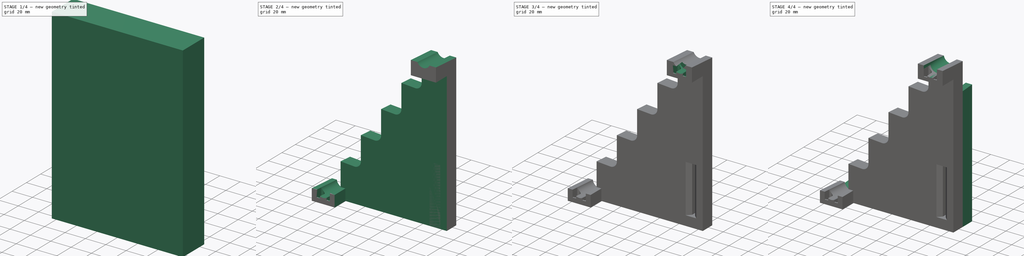
[diagram: build sequence overview — one tinted view per stage of 4, left to right]
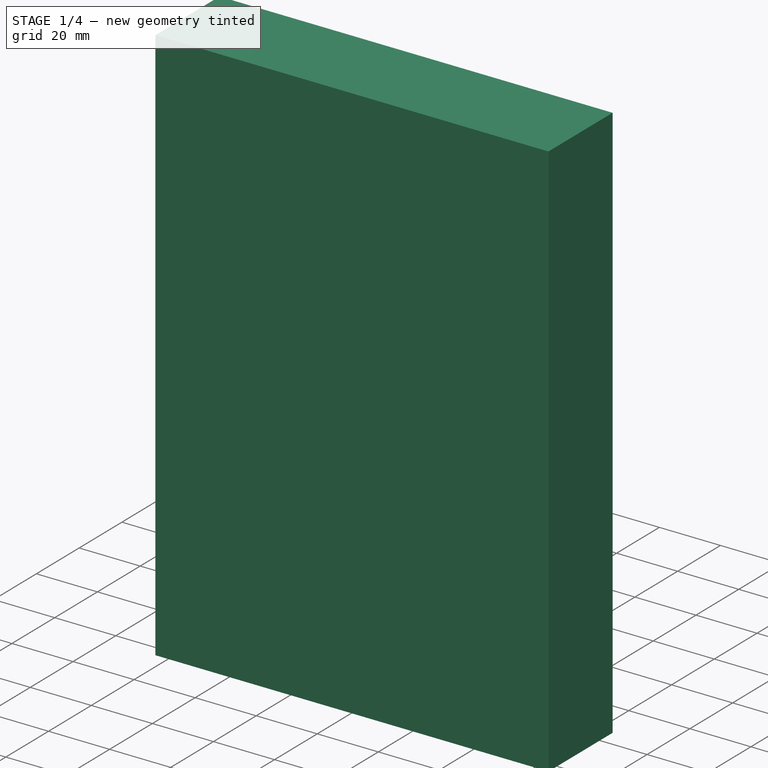
[diagram: stage 1 of 4 — iso view after this stage's code; geometry added in this stage tinted green]
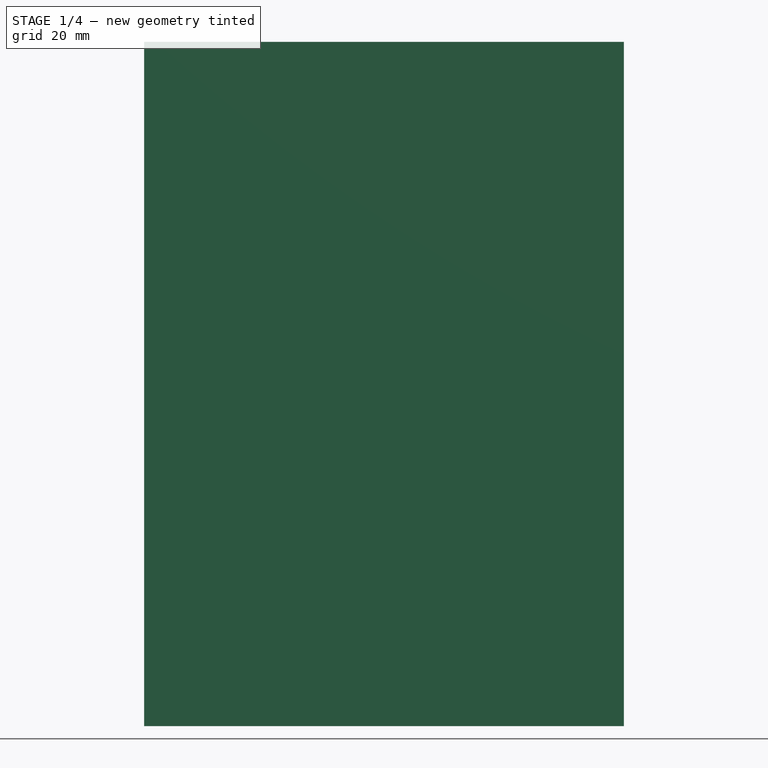
[diagram: stage 1 of 4 — front view after this stage's code; geometry added in this stage tinted green]
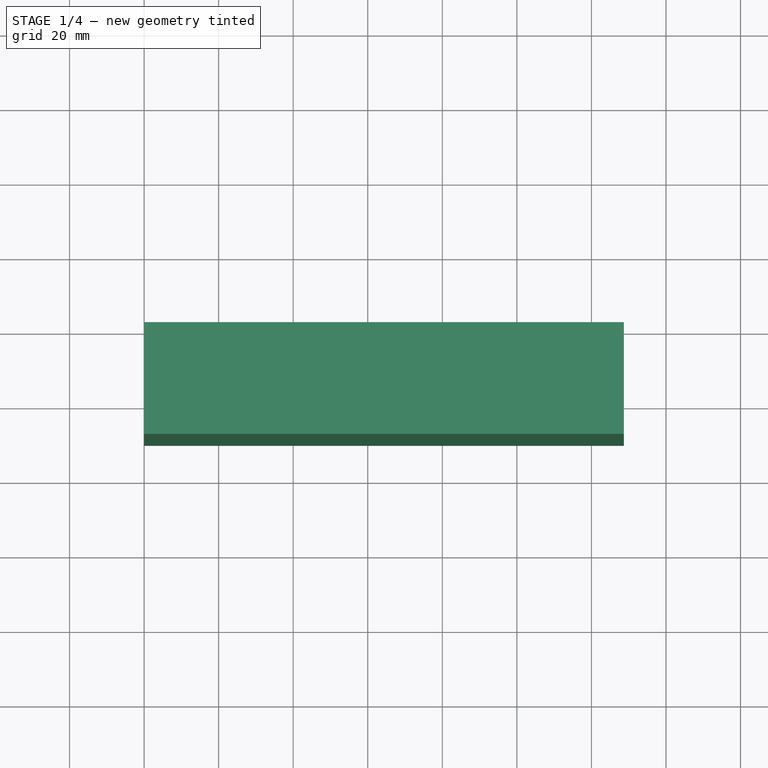
[diagram: stage 1 of 4 — top view after this stage's code; geometry added in this stage tinted green]
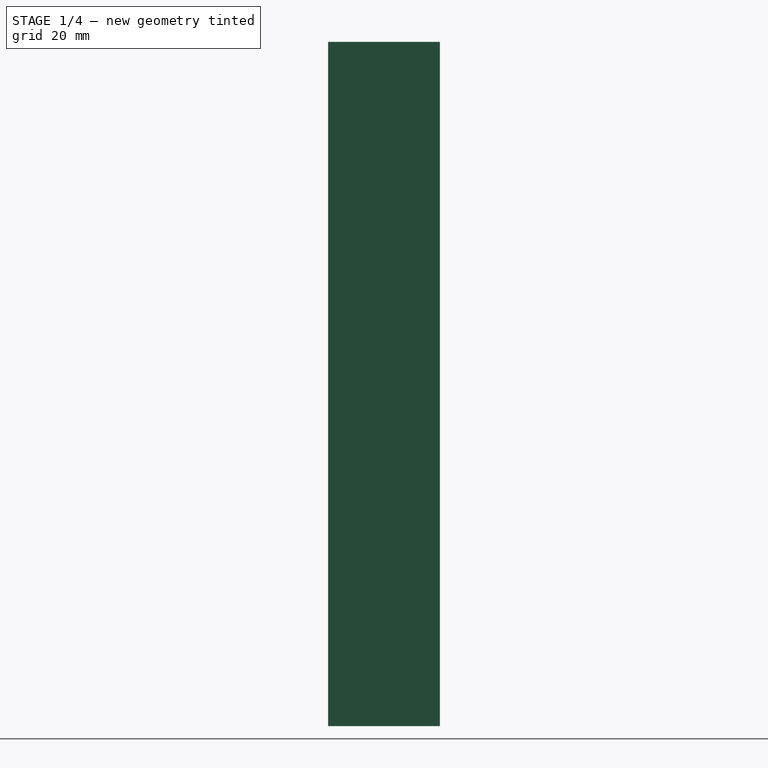
[diagram: stage 1 of 4 — right view after this stage's code; geometry added in this stage tinted green]
FCSTD DOCUMENT  (FreeCAD 0.19R24212 (Git))
Label: neuer_versuch
License: All rights reserved
LicenseURL: http://en.wikipedia.org/wiki/All_rights_reserved
objects: Sketcher::SketchObject×8, PartDesign::Body×5, PartDesign::Pad×4, PartDesign::Pocket×4, PartDesign::Boolean×3, PartDesign::ShapeBinder×2, Part::Feature×2, Spreadsheet::Sheet×1, PartDesign::FeatureBase×1
note: 37 computed .brp shape members not serialized (recipe doc carries the construction recipe); baked Part::Feature solids carry a one-line shape summary decoded from their .brp

FEATURE [Sketcher::SketchObject] Sketch001
  FullyConstrained = false
  MapMode = 5
  Placement = pos=(0,0,0) rot=(1,0,0;1.5708rad)
  Support = -> [XZ_Plane]
  sketch-geometry (4):
    g0: LineSegment StartX=0 StartY=183.531 StartZ=0 EndX=128.715 EndY=183.531 EndZ=0
    g1: LineSegment StartX=128.715 StartY=183.531 StartZ=0 EndX=128.715 EndY=0 EndZ=0
    g2: LineSegment StartX=128.715 StartY=0 StartZ=0 EndX=0 EndY=0 EndZ=0
    g3: LineSegment StartX=0 StartY=0 StartZ=0 EndX=0 EndY=183.531 EndZ=0
  constraints (9):
    c: Coincident(g0,g1)
    c: Coincident(g1,g2)
    c: Coincident(g2,g3)
    c: Coincident(g3,g0)
    c: Horizontal(g0)
    c: Horizontal(g2)
    c: Vertical(g1)
    c: Vertical(g3)
    c: Coincident(g2,g-1)
FEATURE [Sketcher::SketchObject] Sketch  label="treppe_vorne"
  AttachmentOffset = pos=(0,0,0) rot=(1,0,0;-0.069813rad)
  ExternalGeometry = -> [Sketch001]
  FullyConstrained = false
  MapMode = 5
  Placement = pos=(0,0,0) rot=(-1,0,0;4.7822rad)
  Support = -> [XZ_Plane]
  expr: Constraints[64] = Spreadsheet.h2 - 2
  expr: Constraints[55] = Spreadsheet.rd
  expr: Constraints[27] = Spreadsheet.zb
  expr: Constraints[41] = Spreadsheet.rd
  expr: Constraints[51] = Spreadsheet.h2
  expr: Constraints[8] = Spreadsheet.d
  expr: Constraints[65] = Spreadsheet.sechseck_wh
  expr: Constraints[40] = Spreadsheet.rt
  sketch-geometry (25):
    g0: LineSegment StartX=0 StartY=9.60627 StartZ=0 EndX=5 EndY=9.60627 EndZ=0
    g1: LineSegment StartX=18.6543 StartY=9.60627 StartZ=0 EndX=18.6543 EndY=34.7063 EndZ=0
    g2: LineSegment StartX=18.6543 StartY=34.7063 StartZ=0 EndX=32.8079 EndY=33.7166 EndZ=0
    g3: ArcOfCircle CenterX=33.2543 CenterY=40.101 CenterZ=0 NormalX=0 NormalY=0 NormalZ=1 AngleXU=0 Radius=6.4 StartAngle=4.64258 EndAngle=6.28319
    g4: LineSegment StartX=39.6543 StartY=40.101 StartZ=0 EndX=39.6543 EndY=64.7166 EndZ=0
    g5: LineSegment StartX=39.6543 StartY=64.7166 StartZ=0 EndX=53.8079 EndY=63.7268 EndZ=0
    g6: ArcOfCircle CenterX=54.2543 CenterY=70.1113 CenterZ=0 NormalX=0 NormalY=0 NormalZ=1 AngleXU=0 Radius=6.4 StartAngle=4.64258 EndAngle=6.28319
    g7: LineSegment StartX=60.6543 StartY=70.1113 StartZ=0 EndX=60.6543 EndY=94.7268 EndZ=0
    g8: LineSegment StartX=60.6543 StartY=94.7268 StartZ=0 EndX=74.8079 EndY=93.7371 EndZ=0
    g9: ArcOfCircle CenterX=75.2543 CenterY=100.122 CenterZ=0 NormalX=0 NormalY=0 NormalZ=1 AngleXU=0 Radius=6.4 StartAngle=4.64258 EndAngle=6.28319
    g10: LineSegment StartX=81.6543 StartY=100.122 StartZ=0 EndX=81.6543 EndY=124.737 EndZ=0
    g11: LineSegment StartX=81.6543 StartY=124.737 StartZ=0 EndX=95.8079 EndY=123.747 EndZ=0
    g12: LineSegment StartX=102.654 StartY=130.132 StartZ=0 EndX=102.654 EndY=156.747 EndZ=0
    g13: ArcOfCircle CenterX=96.2543 CenterY=130.132 CenterZ=0 NormalX=0 NormalY=0 NormalZ=1 AngleXU=0 Radius=6.4 StartAngle=4.64258 EndAngle=6.28319
    g14: LineSegment StartX=18.6543 StartY=34.7063 StartZ=0 EndX=81.6543 EndY=124.737 EndZ=0
    g15: LineSegment StartX=32.8079 StartY=33.7166 StartZ=0 EndX=95.8079 EndY=123.747 EndZ=0
    g16: ArcOfCircle CenterX=11.8272 CenterY=10.6063 CenterZ=0 NormalX=0 NormalY=0 NormalZ=1 AngleXU=0 Radius=6.9 StartAngle=3.28703 EndAngle=6.13775
    g17: GeomPoint X=11.8272 Y=3.70627 Z=0
    g18: LineSegment StartX=0 StartY=9.60627 StartZ=0 EndX=0 EndY=183.084 EndZ=0
    g19: LineSegment StartX=0 StartY=183.084 StartZ=0 EndX=128.715 EndY=183.084 EndZ=0
    g20: LineSegment StartX=128.715 StartY=183.084 StartZ=0 EndX=128.715 EndY=156.747 EndZ=0
    g21: LineSegment StartX=102.654 StartY=156.747 StartZ=0 EndX=109.489 EndY=156.747 EndZ=0
    g22: ArcOfCircle CenterX=115.75 CenterY=159.647 CenterZ=0 NormalX=0 NormalY=0 NormalZ=1 AngleXU=0 Radius=6.9 StartAngle=3.57536 EndAngle=5.84942
    g23: LineSegment StartX=122.011 StartY=156.747 StartZ=0 EndX=128.715 EndY=156.747 EndZ=0
    g24: GeomPoint X=115.75 Y=152.747 Z=0
  constraints (67):
    c: PointOnObject(g0,g-2)
    c: Coincident(g1,g2)
    c: Vertical(g1)
    c: Angle(g2) = -0.0698132
    c: Horizontal(g0)
    c: Tangent(g3,g4) = -1.5708
    c: Coincident(g4,g5)
    c: Angle(g5) = -0.0698132
    c: Diameter(g3) = 12.8
    c: Vertical(g4)
    c: Tangent(g3,g2) = -1.5708
    c: Tangent(g6,g7) = -1.5708
    c: Coincident(g7,g8)
    c: Parallel(g5,g8) = -0.0698132
    c: Equal(g3,g6) = 12.8
    c: Vertical(g7)
    c: Tangent(g9,g10) = -1.5708
    c: Coincident(g10,g11)
    c: Parallel(g5,g11) = -0.0698132
    c: Equal(g3,g9) = 12.8
    c: Vertical(g10)
    c: Tangent(g13,g12) = -1.5708
    c: Equal(g3,g13) = 12.8
    c: Vertical(g12)
    c: Tangent(g11,g13) = -1.5708
    c: Tangent(g8,g9) = -1.5708
    c: Tangent(g5,g6) = -1.5708
    c: DistanceX(g1,g4) = 21
    c: Coincident(g14,g1)
    c: PointOnObject(g4,g14)
    c: PointOnObject(g7,g14)
    c: Coincident(g15,g2)
    c: Coincident(g15,g11)
    c: PointOnObject(g8,g15)
    c: PointOnObject(g5,g15)
    c: Parallel(g15,g14)
    c: Coincident(g16,g0)
    c: Coincident(g16,g1)
    c: PointOnObject(g17,g16)
    c: Vertical(g16,g17)
    c: DistanceY(g17,g1) = 5.9
    c: Diameter(g16) = 13.8
    c: Horizontal(g0,g1)
    c: Coincident(g0,g18)
    c: PointOnObject(g18,g-2)
    c: Coincident(g18,g19)
    c: Horizontal(g19)
    c: Coincident(g19,g20)
    c: Vertical(g20)
    c: DistanceY(g17,g1) = 31
    c: Coincident(g19,g-3)
    c: DistanceY(g8,g10) = 31
    c: Coincident(g21,g12)
    c: Horizontal(g21)
    c: Coincident(g22,g21)
    c: Diameter(g22) = 13.8
    c: Coincident(g23,g22)
    c: Coincident(g23,g20)
    c: Horizontal(g23)
    c: Horizontal(g22,g21)
    c: PointOnObject(g24,g22)
    c: Vertical(g22,g24)
    c: DistanceY(g24,g22) = 4
    c: Coincident(g14,g10)
    c: DistanceY(g11,g24) = 29
    c: DistanceX(g16,g22) = 103.923
    c: DistanceX(g0,g0) = 5
FEATURE [PartDesign::Pad] Pad
  Direction = (1,1,1)
  Length = 30
  Length2 = 100
  Placement = pos=(0,0,0) rot=(1,0,0;1.5708rad)
  Profile = -> Sketch001
  Type = 0
FEATURE [Sketcher::SketchObject] Sketch007
  AttachmentOffset = pos=(0,0,0) rot=(0,1,0;3.14159rad)
  FullyConstrained = false
  MapMode = 5
  Placement = pos=(0,0,0) rot=(0,1,0;3.14159rad)
  Support = -> [XY_Plane003]
  sketch-geometry (6):
    g0: LineSegment StartX=-114.925 StartY=0 StartZ=0 EndX=-114.925 EndY=-10 EndZ=0
    g1: LineSegment StartX=-114.925 StartY=-10 StartZ=0 EndX=-110.925 EndY=-14 EndZ=0
    g2: LineSegment StartX=-110.925 StartY=-14 StartZ=0 EndX=-121.925 EndY=-14 EndZ=0
    g3: LineSegment StartX=-121.925 StartY=-14 StartZ=0 EndX=-117.925 EndY=-10 EndZ=0
    g4: LineSegment StartX=-117.925 StartY=-10 StartZ=0 EndX=-117.925 EndY=0 EndZ=0
    g5: LineSegment StartX=-117.925 StartY=0 StartZ=0 EndX=-114.925 EndY=0 EndZ=0
  constraints (17):
    c: PointOnObject(g0,g-1)
    c: Vertical(g0)
    c: Coincident(g0,g1)
    c: Coincident(g1,g2)
    c: Horizontal(g2)
    c: Coincident(g2,g3)
    c: Coincident(g3,g4)
    c: PointOnObject(g4,g-1)
    c: Coincident(g4,g5)
    c: Coincident(g5,g0)
    c: Vertical(g4)
    c: Horizontal(g3,g0)
    c: Angle(g3) = 0.785398
    c: Angle(g1) = -0.785398
    c: DistanceY(g2,g4) = 14
    c: DistanceX(g4,g0) = 3
    c: DistanceY(g2,g3) = 4
FEATURE [PartDesign::Pad] Pad002
  Direction = (1,1,1)
  Length = 60
  Length2 = 100
  Profile = -> Sketch007
  Reversed = true
  Type = 0
FEATURE [PartDesign::Body] Body  label="vorne"
  Group = -> [Sketch001,Sketch,Pad,Pocket,Sketch006,Pocket004,Boolean,Boolean001,Boolean002,Pocket003]
  Origin = -> Origin
  Tip = -> Boolean002
FEATURE [PartDesign::Pad] Pad003
  BaseFeature = -> Clone
  Direction = (1,1,1)
  Length = 10
  Length2 = 100
  Placement = pos=(0,0,0) rot=(0,1,0;3.14159rad)
  Profile = -> Clone
  Type = 0
FEATURE [PartDesign::Body] Body004  label="Body005"
  BaseFeature = -> Sketch007
  Group = -> [Clone,Pad003]
  Origin = -> Origin004
  Tip = -> Pad003
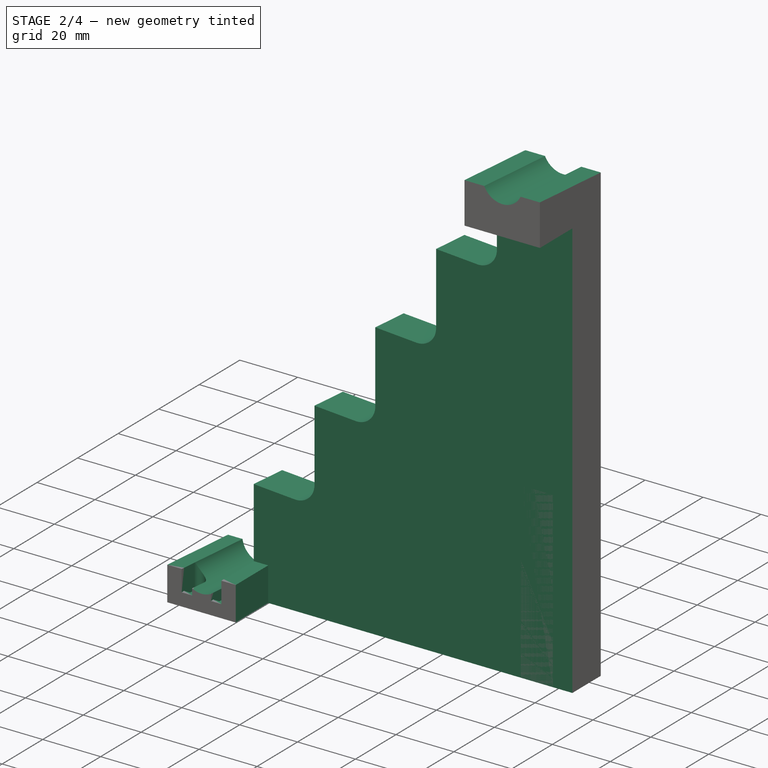
[diagram: stage 2 of 4 — iso view after this stage's code; geometry added in this stage tinted green]
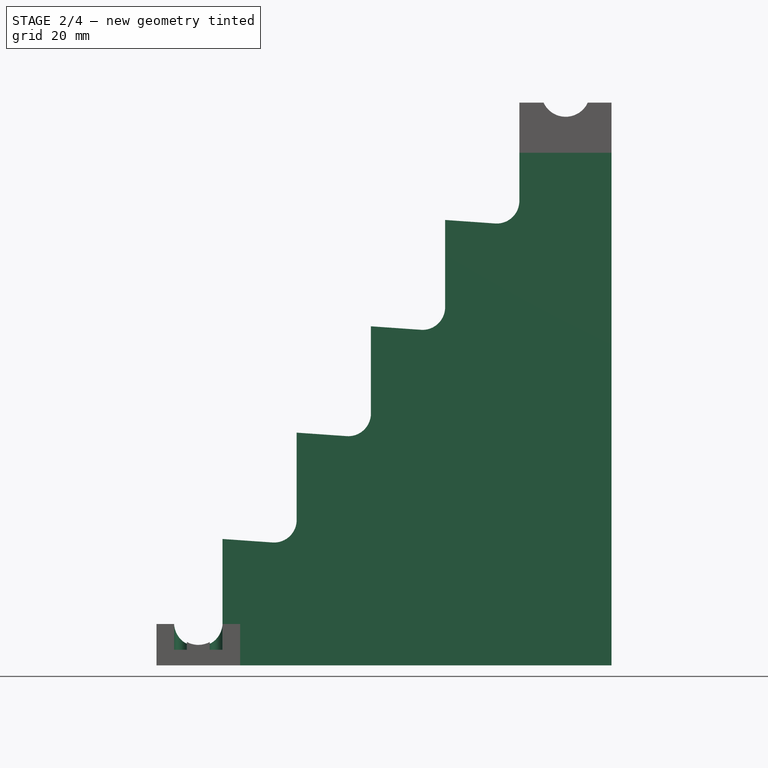
[diagram: stage 2 of 4 — front view after this stage's code; geometry added in this stage tinted green]
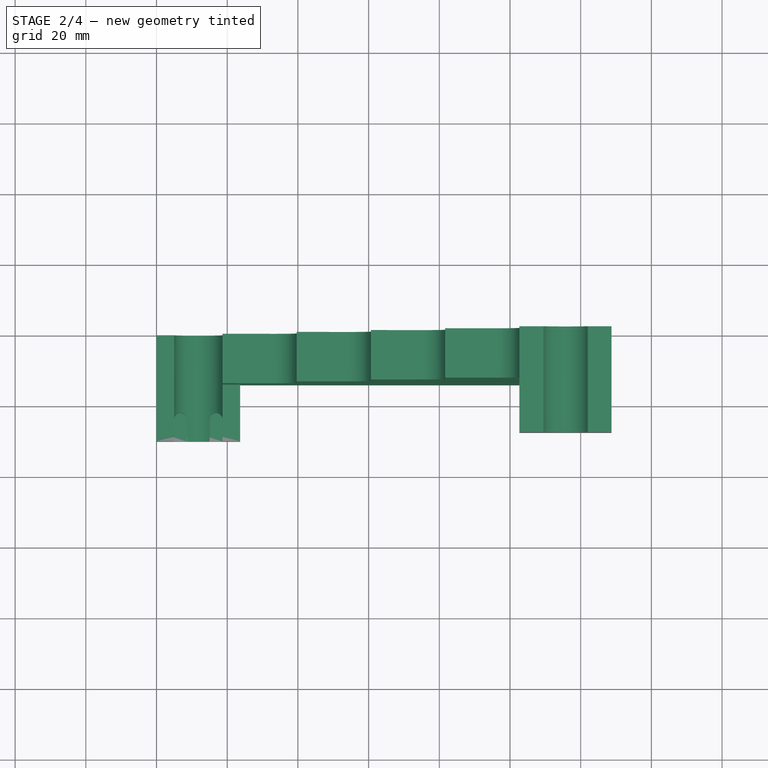
[diagram: stage 2 of 4 — top view after this stage's code; geometry added in this stage tinted green]
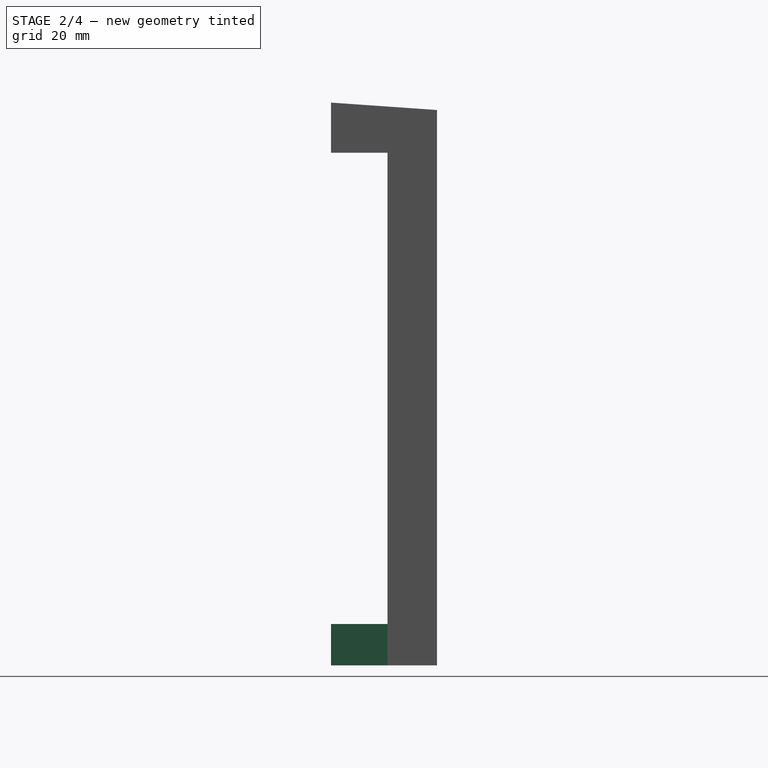
[diagram: stage 2 of 4 — right view after this stage's code; geometry added in this stage tinted green]
FEATURE [PartDesign::Pocket] Pocket
  BaseFeature = -> Pad
  Length = 12
  Length2 = 100
  Midplane = true
  Placement = pos=(0,0,0) rot=(1,0,0;1.5708rad)
  Profile = -> Sketch
  Reversed = true
  Type = 1
FEATURE [PartDesign::Body] Body001  label="hinten"
  Group = -> [Sketch003,Sketch004,Pad001,Pocket002,ShapeBinder,ShapeBinder001]
  Origin = -> Origin001
  Tip = -> Pocket002
  expr: .Placement.Base.x = 0
FEATURE [Sketcher::SketchObject] Sketch005
  FullyConstrained = true
  MapMode = 5
  sketch-geometry (56):
    g0: LineSegment StartX=29.3205 StartY=-30 StartZ=0 EndX=46.641 EndY=7.1e-15 EndZ=0
    g1: LineSegment StartX=46.641 StartY=5.6e-15 StartZ=0 EndX=29.3205 EndY=30 EndZ=0
    g2: LineSegment StartX=29.3205 StartY=30 StartZ=0 EndX=-5.32051 EndY=30 EndZ=0
    g3: LineSegment StartX=-5.32051 StartY=30 StartZ=0 EndX=-22.641 EndY=7.1e-15 EndZ=0
    g4: LineSegment StartX=-22.641 StartY=7.1e-15 StartZ=0 EndX=-5.32051 EndY=-30 EndZ=0
    g5: LineSegment StartX=-5.32051 StartY=-30 StartZ=0 EndX=29.3205 EndY=-30 EndZ=0
    g6: Circle CenterX=12 CenterY=6.7e-15 CenterZ=0 NormalX=0 NormalY=0 NormalZ=1 AngleXU=0 Radius=34.641
    g7: LineSegment StartX=150.564 StartY=0 StartZ=0 EndX=133.244 EndY=30 EndZ=0
    g8: LineSegment StartX=133.244 StartY=30 StartZ=0 EndX=98.6025 EndY=30 EndZ=0
    g9: LineSegment StartX=98.6025 StartY=30 StartZ=0 EndX=81.282 EndY=0 EndZ=0
    g10: LineSegment StartX=81.282 StartY=0 StartZ=0 EndX=98.6025 EndY=-30 EndZ=0
    g11: LineSegment StartX=98.6025 StartY=-30 StartZ=0 EndX=133.244 EndY=-30 EndZ=0
    g12: LineSegment StartX=133.244 StartY=-30 StartZ=0 EndX=150.564 EndY=0 EndZ=0
    g13: Circle CenterX=115.923 CenterY=0 CenterZ=0 NormalX=0 NormalY=0 NormalZ=1 AngleXU=0 Radius=34.641
    g14: LineSegment StartX=98.6025 StartY=30 StartZ=0 EndX=81.282 EndY=60 EndZ=0
    g15: LineSegment StartX=81.282 StartY=60 StartZ=0 EndX=46.641 EndY=60 EndZ=0
    g16: LineSegment StartX=46.641 StartY=60 StartZ=0 EndX=29.3205 EndY=30 EndZ=0
    g17: LineSegment StartX=29.3205 StartY=30 StartZ=0 EndX=46.641 EndY=7.1e-15 EndZ=0
    g18: LineSegment StartX=46.641 StartY=7.1e-15 StartZ=0 EndX=81.282 EndY=3.3e-15 EndZ=0
    g19: LineSegment StartX=81.282 StartY=3.3e-15 StartZ=0 EndX=98.6025 EndY=30 EndZ=0
    g20: Circle CenterX=63.9615 CenterY=30 CenterZ=0 NormalX=0 NormalY=0 NormalZ=1 AngleXU=0 Radius=34.641
    g21: LineSegment StartX=81.282 StartY=-60 StartZ=0 EndX=98.6025 EndY=-30 EndZ=0
    g22: LineSegment StartX=98.6025 StartY=-30 StartZ=0 EndX=81.282 EndY=3.6e-15 EndZ=0
    g23: LineSegment StartX=81.282 StartY=3.6e-15 StartZ=0 EndX=46.641 EndY=5.6e-15 EndZ=0
    g24: LineSegment StartX=46.641 StartY=5.6e-15 StartZ=0 EndX=29.3205 EndY=-30 EndZ=0
    g25: LineSegment StartX=29.3205 StartY=-30 StartZ=0 EndX=46.641 EndY=-60 EndZ=0
    g26: LineSegment StartX=46.641 StartY=-60 StartZ=0 EndX=81.282 EndY=-60 EndZ=0
    g27: Circle CenterX=63.9615 CenterY=-30 CenterZ=0 NormalX=0 NormalY=0 NormalZ=1 AngleXU=0 Radius=34.641
    g28: LineSegment StartX=29.205 StartY=0 StartZ=0 EndX=20.6025 EndY=14.9 EndZ=0
    g29: LineSegment StartX=20.6025 StartY=14.9 StartZ=0 EndX=3.39748 EndY=14.9 EndZ=0
    g30: LineSegment StartX=3.39748 StartY=14.9 StartZ=0 EndX=-5.20504 EndY=1.07e-14 EndZ=0
    g31: LineSegment StartX=-5.20504 StartY=1.07e-14 StartZ=0 EndX=3.39748 EndY=-14.9 EndZ=0
    g32: LineSegment StartX=3.39748 StartY=-14.9 StartZ=0 EndX=20.6025 EndY=-14.9 EndZ=0
    g33: LineSegment StartX=20.6025 StartY=-14.9 StartZ=0 EndX=29.205 EndY=0 EndZ=0
    g34: Circle CenterX=12 CenterY=6.7e-15 CenterZ=0 NormalX=0 NormalY=0 NormalZ=1 AngleXU=0 Radius=17.205
    g35: LineSegment StartX=133.128 StartY=0 StartZ=0 EndX=124.526 EndY=14.9 EndZ=0
    g36: LineSegment StartX=124.526 StartY=14.9 StartZ=0 EndX=107.321 EndY=14.9 EndZ=0
    g37: LineSegment StartX=107.321 StartY=14.9 StartZ=0 EndX=98.718 EndY=-1.8e-15 EndZ=0
    g38: LineSegment StartX=98.718 StartY=-1.8e-15 StartZ=0 EndX=107.321 EndY=-14.9 EndZ=0
    g39: LineSegment StartX=107.321 StartY=-14.9 StartZ=0 EndX=124.526 EndY=-14.9 EndZ=0
    g40: LineSegment StartX=124.526 StartY=-14.9 StartZ=0 EndX=133.128 EndY=0 EndZ=0
    g41: Circle CenterX=115.923 CenterY=0 CenterZ=0 NormalX=0 NormalY=0 NormalZ=1 AngleXU=0 Radius=17.205
    g42: LineSegment StartX=81.1666 StartY=-30 StartZ=0 EndX=72.564 EndY=-15.1 EndZ=0
    g43: LineSegment StartX=72.564 StartY=-15.1 StartZ=0 EndX=55.359 EndY=-15.1 EndZ=0
    g44: LineSegment StartX=55.359 StartY=-15.1 StartZ=0 EndX=46.7565 EndY=-30 EndZ=0
    g45: LineSegment StartX=46.7565 StartY=-30 StartZ=0 EndX=55.359 EndY=-44.9 EndZ=0
    g46: LineSegment StartX=55.359 StartY=-44.9 StartZ=0 EndX=72.564 EndY=-44.9 EndZ=0
    g47: LineSegment StartX=72.564 StartY=-44.9 StartZ=0 EndX=81.1666 EndY=-30 EndZ=0
    g48: Circle CenterX=63.9615 CenterY=-30 CenterZ=0 NormalX=0 NormalY=0 NormalZ=1 AngleXU=0 Radius=17.205
    g49: LineSegment StartX=72.564 StartY=15.1 StartZ=0 EndX=81.1666 EndY=30 EndZ=0
    g50: LineSegment StartX=81.1666 StartY=30 StartZ=0 EndX=72.564 EndY=44.9 EndZ=0
    g51: LineSegment StartX=72.564 StartY=44.9 StartZ=0 EndX=55.359 EndY=44.9 EndZ=0
    g52: LineSegment StartX=55.359 StartY=44.9 StartZ=0 EndX=46.7565 EndY=30 EndZ=0
    g53: LineSegment StartX=46.7565 StartY=30 StartZ=0 EndX=55.359 EndY=15.1 EndZ=0
    g54: LineSegment StartX=55.359 StartY=15.1 StartZ=0 EndX=72.564 EndY=15.1 EndZ=0
    g55: Circle CenterX=63.9615 CenterY=30 CenterZ=0 NormalX=0 NormalY=0 NormalZ=1 AngleXU=0 Radius=17.205
  constraints (128):
    c: Coincident(g0,g1)
    c: Coincident(g1,g2)
    c: Coincident(g2,g3)
    c: Coincident(g3,g4)
    c: Coincident(g4,g5)
    c: Coincident(g5,g0)
    c: Equal(g0, g1-g5) x5
    c: PointOnObject(g0,g6)
    c: PointOnObject(g1,g6)
    c: PointOnObject(g2,g6)
    c: PointOnObject(g3,g6)
    c: PointOnObject(g4,g6)
    c: PointOnObject(g5,g6)
    c: Horizontal(g2)
    c: Coincident(g7,g8)
    c: Coincident(g8,g9)
    c: Coincident(g9,g10)
    c: Coincident(g10,g11)
    c: Coincident(g11,g12)
    c: Coincident(g12,g7)
    c: Equal(g7, g8-g12) x5
    c: PointOnObject(g7,g13)
    c: PointOnObject(g8,g13)
    c: PointOnObject(g9,g13)
    c: PointOnObject(g10,g13)
    c: PointOnObject(g11,g13)
    c: PointOnObject(g12,g13)
    c: PointOnObject(g13,g-1)
    c: PointOnObject(g12,g-1)
    c: Equal(g13,g6)
    c: DistanceY(g11,g7) = 60
    c: Coincident(g14,g15)
    c: Coincident(g15,g16)
    c: Coincident(g16,g17)
    c: Coincident(g17,g18)
    c: Coincident(g18,g19)
    c: Coincident(g19,g14)
    c: Equal(g14, g15-g19) x5
    c: PointOnObject(g14,g20)
    c: PointOnObject(g15,g20)
    c: PointOnObject(g16,g20)
    c: PointOnObject(g17,g20)
    c: PointOnObject(g18,g20)
    c: PointOnObject(g19,g20)
    c: Equal(g20,g13)
    c: Coincident(g16,g1)
    c: Coincident(g14,g8)
    c: DistanceX(g-1,g13) = 115.923  'Sechseck_wh'
    c: Coincident(g21,g22)
    c: Coincident(g22,g23)
    c: Coincident(g23,g24)
    c: Coincident(g24,g25)
    c: Coincident(g25,g26)
    c: Coincident(g26,g21)
    c: Equal(g21, g22-g26) x5
    c: PointOnObject(g21,g27)
    c: PointOnObject(g22,g27)
    c: PointOnObject(g23,g27)
    c: PointOnObject(g24,g27)
    c: PointOnObject(g25,g27)
    c: Coincident(g0,g24)
    c: Coincident(g21,g10)
    c: Coincident(g0,g23)
    c: DistanceX(g-1,g6) = 12
    c: Coincident(g28,g29)
    c: Coincident(g29,g30)
    c: Coincident(g30,g31)
    c: Coincident(g31,g32)
    c: Coincident(g32,g33)
    c: Coincident(g33,g28)
    c: Equal(g28, g29-g33) x5
    c: PointOnObject(g28,g34)
    c: PointOnObject(g29,g34)
    c: PointOnObject(g30,g34)
    c: PointOnObject(g31,g34)
    c: PointOnObject(g32,g34)
    c: PointOnObject(g33,g34)
    c: Coincident(g34,g6)
    c: PointOnObject(g33,g-1)
    c: DistanceY(g31,g29) = 29.8
    c: Coincident(g35,g36)
    c: Coincident(g36,g37)
    c: Coincident(g37,g38)
    c: Coincident(g38,g39)
    c: Coincident(g39,g40)
    c: Coincident(g40,g35)
    c: Equal(g35, g36-g40) x5
    c: PointOnObject(g35,g41)
    c: PointOnObject(g36,g41)
    c: PointOnObject(g37,g41)
    c: PointOnObject(g38,g41)
    c: PointOnObject(g39,g41)
    c: PointOnObject(g40,g41)
    c: Coincident(g41,g13)
    c: PointOnObject(g40,g-1)
    c: Coincident(g42,g43)
    c: Coincident(g43,g44)
    c: Coincident(g44,g45)
    c: Coincident(g45,g46)
    c: Coincident(g46,g47)
    c: Coincident(g47,g42)
    c: Equal(g42, g43-g47) x5
    c: PointOnObject(g42,g48)
    c: PointOnObject(g43,g48)
    c: PointOnObject(g44,g48)
    c: PointOnObject(g45,g48)
    c: PointOnObject(g46,g48)
    c: PointOnObject(g47,g48)
    c: Coincident(g48,g27)
    c: Coincident(g49,g50)
    c: Coincident(g50,g51)
    c: Coincident(g51,g52)
    c: Coincident(g52,g53)
    c: Coincident(g53,g54)
    c: Coincident(g54,g49)
    c: Equal(g49, g50-g54) x5
    c: PointOnObject(g49,g55)
    c: PointOnObject(g50,g55)
    c: PointOnObject(g51,g55)
    c: PointOnObject(g52,g55)
    c: PointOnObject(g53,g55)
    c: PointOnObject(g54,g55)
    c: Coincident(g55,g20)
    c: Equal(g34,g55)
    c: Equal(g55,g48)
    c: Equal(g48,g41)
    c: Horizontal(g43)
    c: Horizontal(g54)
FEATURE [PartDesign::Body] Body002
  Group = -> [Sketch005]
  Origin = -> Origin002
FEATURE [Sketcher::SketchObject] Sketch006
  ExternalGeometry = -> [Pocket]
  FullyConstrained = false
  MapMode = 5
  Placement = pos=(0,-30,-6.6e-15) rot=(1,0,0;1.5708rad)
  Support = -> [Pocket]
  sketch-geometry (6):
    g0: LineSegment StartX=11.8272 StartY=11.7275 StartZ=0 EndX=23.6543 EndY=11.7275 EndZ=0
    g1: LineSegment StartX=23.6543 StartY=11.7275 StartZ=0 EndX=23.6543 EndY=-5.34656 EndZ=0
    g2: LineSegment StartX=23.6543 StartY=-5.34656 StartZ=0 EndX=134.363 EndY=-5.34656 EndZ=0
    g3: LineSegment StartX=134.363 StartY=-5.34656 StartZ=0 EndX=134.363 EndY=145.029 EndZ=0
    g4: LineSegment StartX=134.363 StartY=145.029 StartZ=0 EndX=11.8272 EndY=145.029 EndZ=0
    g5: LineSegment StartX=11.8272 StartY=145.029 StartZ=0 EndX=11.8272 EndY=11.7275 EndZ=0
  constraints (14):
    c: Horizontal(g0)
    c: Coincident(g0,g1)
    c: Vertical(g1)
    c: Coincident(g1,g2)
    c: Horizontal(g2)
    c: Coincident(g2,g3)
    c: Vertical(g3)
    c: Coincident(g3,g4)
    c: Horizontal(g4)
    c: Coincident(g4,g5)
    c: Coincident(g5,g0)
    c: Vertical(g5)
    c: Vertical(g0,g-3)
    c: Symmetric(g0,g-4,g5)
FEATURE [PartDesign::Pocket] Pocket004
  BaseFeature = -> Pocket
  Length = 16
  Length2 = 100
  Placement = pos=(0,0,0) rot=(1,0,0;1.5708rad)
  Profile = -> Sketch006
  Type = 0
FEATURE [Part::Feature] Part__Feature  label="Body001"
  Placement = pos=(11.8272,-20,11.7275) rot=(0,0,1;0rad)
  shape: bbox 13.7 x 10 x 9 mm, 20 faces (baked)
FEATURE [PartDesign::Boolean] Boolean
  BaseFeature = -> Pocket004
  Group = -> [Part__Feature]
  Type = 1
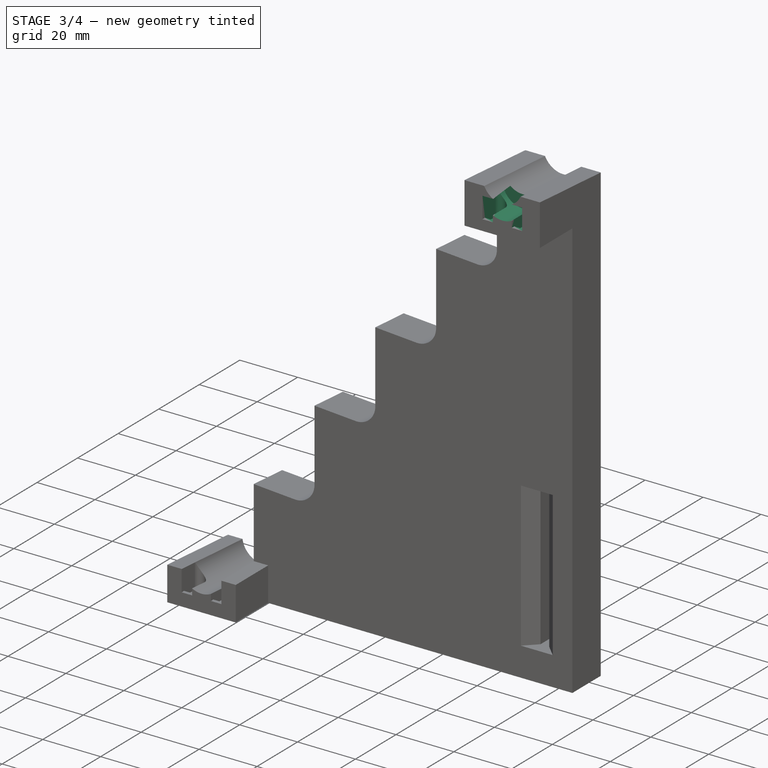
[diagram: stage 3 of 4 — iso view after this stage's code; geometry added in this stage tinted green]
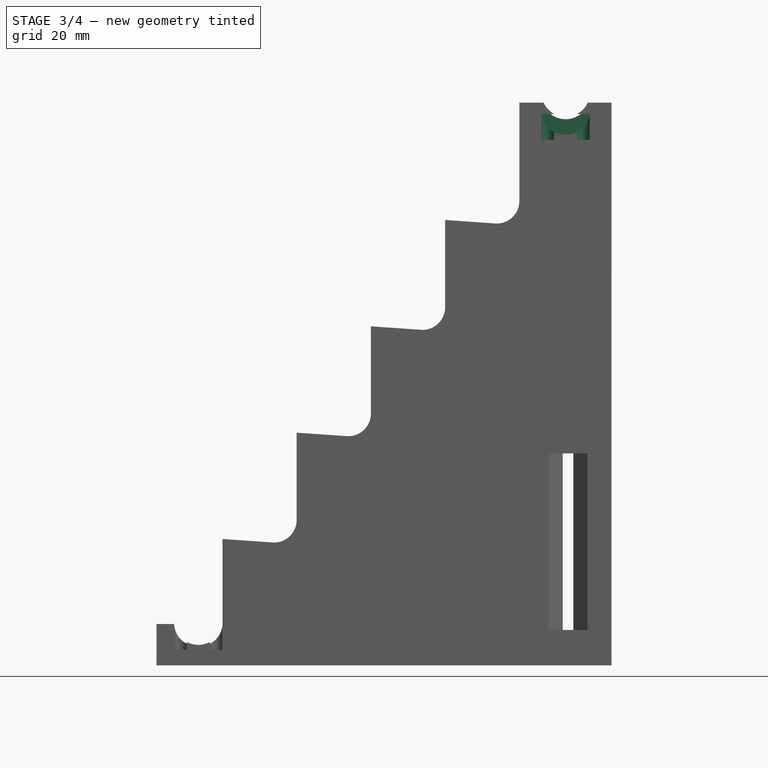
[diagram: stage 3 of 4 — front view after this stage's code; geometry added in this stage tinted green]
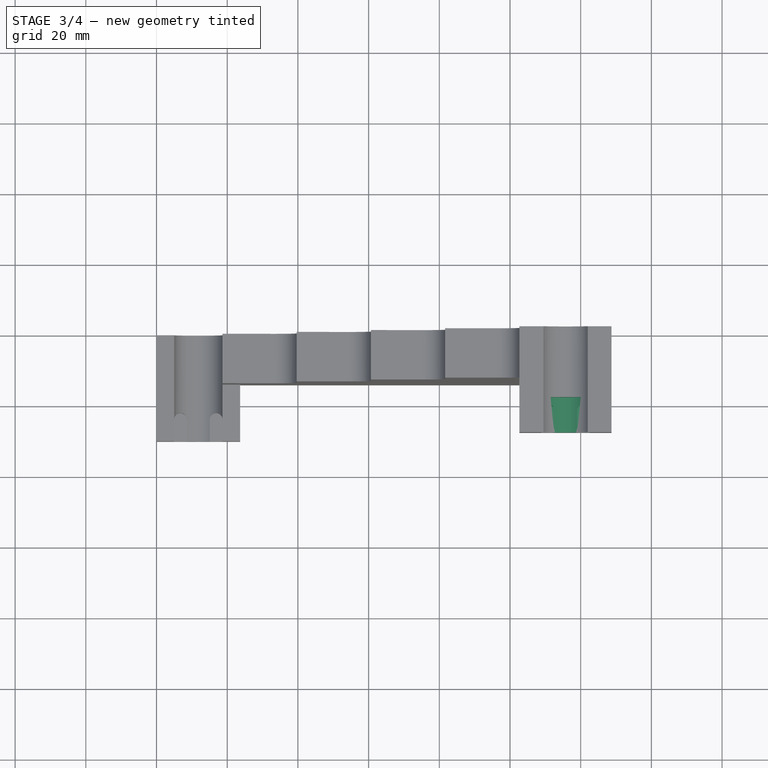
[diagram: stage 3 of 4 — top view after this stage's code; geometry added in this stage tinted green]
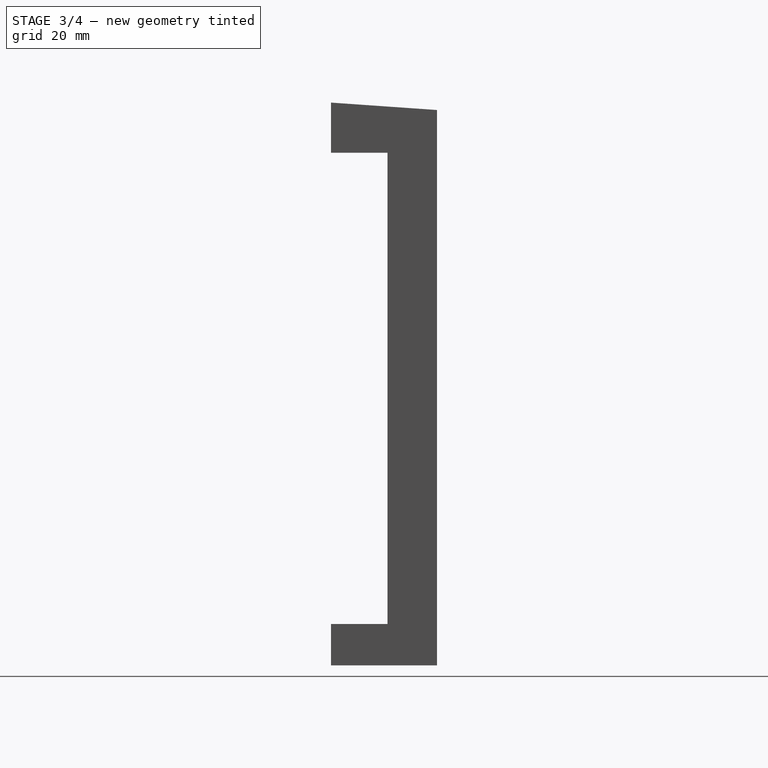
[diagram: stage 3 of 4 — right view after this stage's code; geometry added in this stage tinted green]
FEATURE [Part::Feature] Part__Feature001  label="Body003"
  Placement = pos=(115.73,-20,156) rot=(0,0,1;0rad)
  shape: bbox 13.7 x 10 x 9 mm, 20 faces (baked)
FEATURE [PartDesign::Boolean] Boolean001
  BaseFeature = -> Boolean
  Group = -> [Part__Feature001]
  Type = 1
FEATURE [PartDesign::Body] Body003  label="Body004"
  Group = -> [Sketch007,Pad002]
  Origin = -> Origin003
  Tip = -> Pad002
FEATURE [PartDesign::FeatureBase] Clone
  BaseFeature = -> Sketch007
  Placement = pos=(0,0,0) rot=(0,1,0;3.14159rad)
FEATURE [PartDesign::Boolean] Boolean002
  BaseFeature = -> Boolean001
  Group = -> [Body003]
  Type = 1
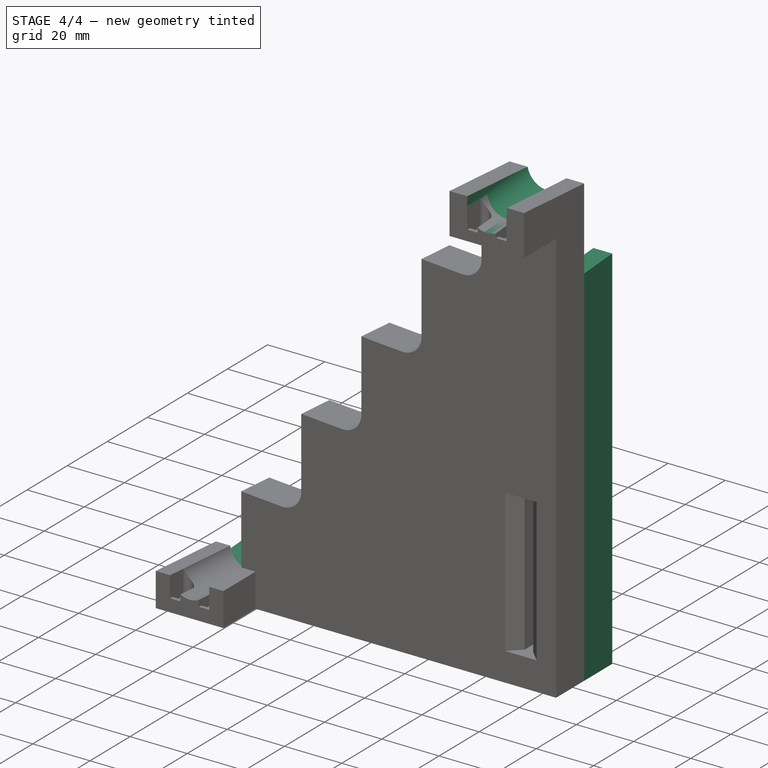
[diagram: stage 4 of 4 — iso view after this stage's code; geometry added in this stage tinted green]
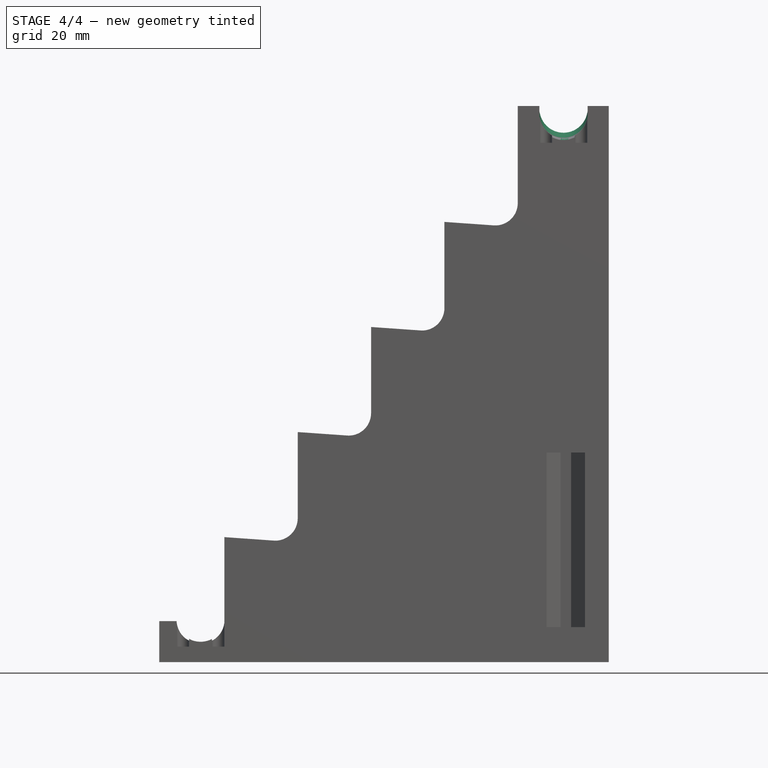
[diagram: stage 4 of 4 — front view after this stage's code; geometry added in this stage tinted green]
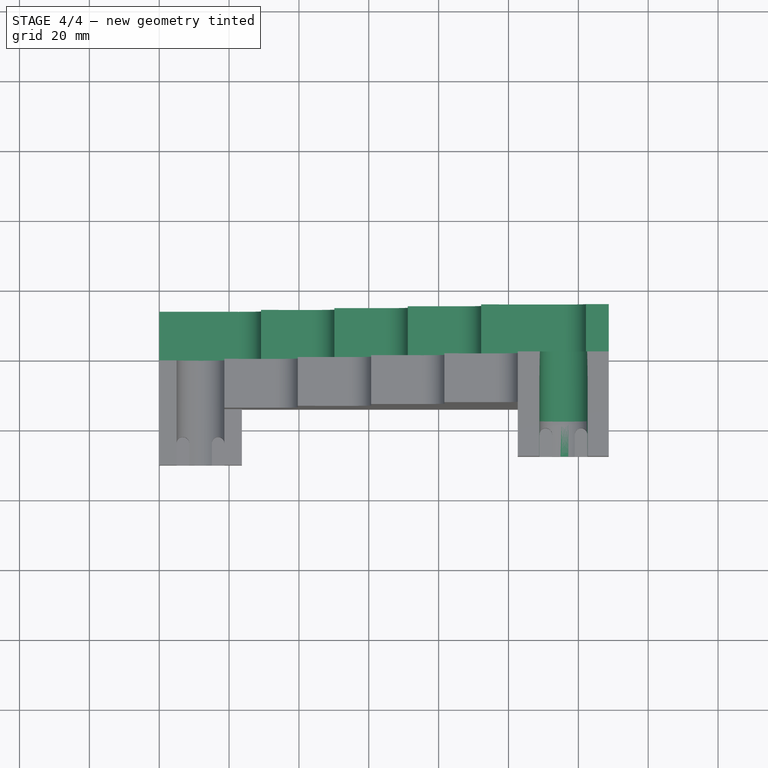
[diagram: stage 4 of 4 — top view after this stage's code; geometry added in this stage tinted green]
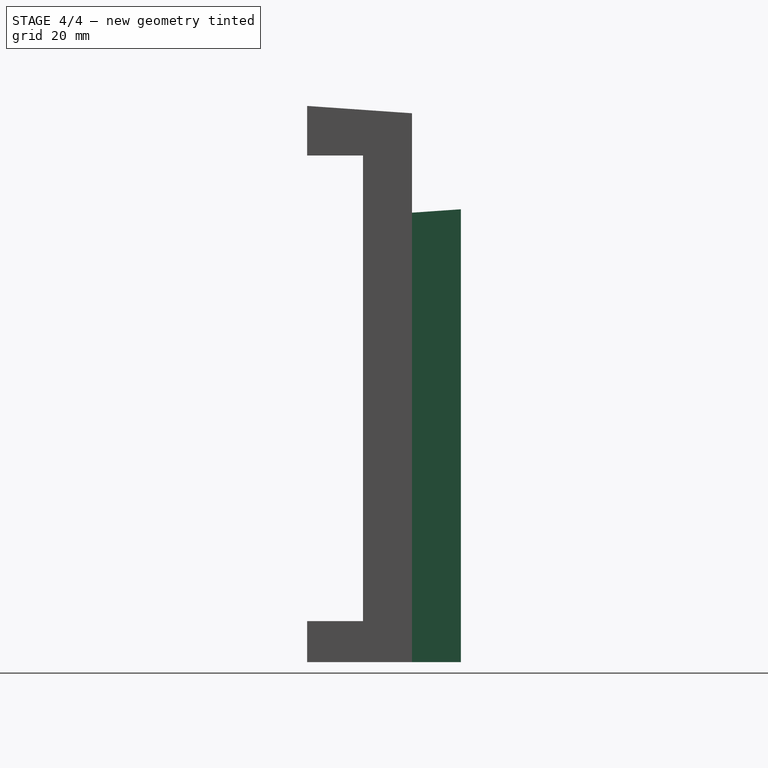
[diagram: stage 4 of 4 — right view after this stage's code; geometry added in this stage tinted green]
FEATURE [Sketcher::SketchObject] Sketch002  label="obere_rinne"
  AttachmentOffset = pos=(0,0,0) rot=(1,0,0;0.069813rad)
  ExternalGeometry = -> [Sketch]
  FullyConstrained = true
  MapMode = 5
  Placement = pos=(0,0,0) rot=(1,0,0;1.64061rad)
  Support = -> [XZ_Plane]
  expr: Constraints[6] = Spreadsheet.rd
  sketch-geometry (4):
    g0: ArcOfCircle CenterX=115.75 CenterY=158.094 CenterZ=0 NormalX=0 NormalY=0 NormalZ=1 AngleXU=0 Radius=6.9 StartAngle=3.14159 EndAngle=6.28319
    g1: LineSegment StartX=108.85 StartY=158.094 StartZ=0 EndX=108.85 EndY=163.094 EndZ=0
    g2: LineSegment StartX=108.85 StartY=163.094 StartZ=0 EndX=122.65 EndY=163.094 EndZ=0
    g3: LineSegment StartX=122.65 StartY=163.094 StartZ=0 EndX=122.65 EndY=158.094 EndZ=0
  constraints (11):
    c: Vertical(g1)
    c: Coincident(g1,g2)
    c: Horizontal(g2)
    c: Coincident(g2,g3)
    c: Coincident(g3,g0)
    c: Vertical(g3)
    c: Diameter(g0) = 13.8
    c: Horizontal(g0,g0)
    c: Tangent(g0,g1) = 1.5708
    c: DistanceY(g0,g2) = 5
    c: Coincident(g0,g-4)
FEATURE [PartDesign::ShapeBinder] ShapeBinder
  Placement = pos=(0,0,0) rot=(1,0,0;1.50098rad)
  Support = -> [Sketch]
  TraceSupport = false
FEATURE [Sketcher::SketchObject] Sketch003
  ExternalGeometry = -> [ShapeBinder]
  FullyConstrained = true
  MapMode = 5
  Placement = pos=(0,0,0) rot=(1,0,0;1.5708rad)
  Support = -> [XZ_Plane001]
  sketch-geometry (4):
    g0: LineSegment StartX=0 StartY=182.638 StartZ=0 EndX=128.715 EndY=182.638 EndZ=0
    g1: LineSegment StartX=128.715 StartY=182.638 StartZ=0 EndX=128.715 EndY=0 EndZ=0
    g2: LineSegment StartX=128.715 StartY=0 StartZ=0 EndX=0 EndY=0 EndZ=0
    g3: LineSegment StartX=0 StartY=0 StartZ=0 EndX=0 EndY=182.638 EndZ=0
  constraints (10):
    c: Coincident(g1,g2)
    c: Coincident(g2,g3)
    c: Coincident(g3,g0)
    c: Horizontal(g0)
    c: Horizontal(g2)
    c: Vertical(g1)
    c: Vertical(g3)
    c: Coincident(g2,g-1)
    c: Coincident(g0,g1)
    c: Coincident(g0,g-4)
FEATURE [PartDesign::Pad] Pad001
  Direction = (1,1,1)
  Length = 14
  Length2 = 100
  Placement = pos=(0,0,0) rot=(1,0,0;1.5708rad)
  Profile = -> Sketch003
  Reversed = true
  Type = 0
FEATURE [Spreadsheet::Sheet] Spreadsheet
  cells = B1(h2)=31; A2=Treppenbreite; B2(zb)=21; A3=Kugeldurchmesser; B3(d)=12.8; A4=Rinnendurchmesser; B4(rd)=13.8; A5=Rinnentiefe; B5(rt)=5.9; A6=Sechseck_Wiederholung; B6(sechseck_wh)==2 * sqrt(60 ^ 2 - 30 ^ 2)
FEATURE [PartDesign::ShapeBinder] ShapeBinder001  label="ShapeBinder_obere_Rinne"
  Placement = pos=(0,0,0) rot=(1,0,0;1.64061rad)
  Support = -> [Sketch002]
  TraceSupport = false
FEATURE [Sketcher::SketchObject] Sketch004  label="treppe_hinten"
  AttachmentOffset = pos=(0,0,0) rot=(1,0,0;0.069813rad)
  ExternalGeometry = -> [ShapeBinder,Sketch003,ShapeBinder001]
  FullyConstrained = false
  MapMode = 5
  Placement = pos=(0,0,0) rot=(1,0,0;1.64061rad)
  Support = -> [XZ_Plane001]
  expr: Constraints[7] = Spreadsheet.d
  expr: Constraints[21] = Spreadsheet.zb
  expr: Constraints[41] = Spreadsheet.h2
  sketch-geometry (22):
    g0: LineSegment StartX=29.1543 StartY=8.93741 StartZ=0 EndX=29.1543 EndY=33.553 EndZ=0
    g1: LineSegment StartX=29.1543 StartY=33.553 StartZ=0 EndX=43.3079 EndY=32.5633 EndZ=0
    g2: ArcOfCircle CenterX=43.7543 CenterY=38.9477 CenterZ=0 NormalX=0 NormalY=0 NormalZ=1 AngleXU=0 Radius=6.4 StartAngle=4.64258 EndAngle=6.28319
    g3: LineSegment StartX=50.1543 StartY=38.9477 StartZ=0 EndX=50.1543 EndY=63.5633 EndZ=0
    g4: LineSegment StartX=50.1543 StartY=63.5633 StartZ=0 EndX=64.3079 EndY=62.5736 EndZ=0
    g5: ArcOfCircle CenterX=64.7543 CenterY=68.958 CenterZ=0 NormalX=0 NormalY=0 NormalZ=1 AngleXU=0 Radius=6.4 StartAngle=4.64258 EndAngle=6.28319
    g6: LineSegment StartX=71.1543 StartY=68.958 StartZ=0 EndX=71.1543 EndY=93.5736 EndZ=0
    g7: LineSegment StartX=71.1543 StartY=93.5736 StartZ=0 EndX=85.3079 EndY=92.5839 EndZ=0
    g8: ArcOfCircle CenterX=85.7543 CenterY=98.9683 CenterZ=0 NormalX=0 NormalY=0 NormalZ=1 AngleXU=0 Radius=6.4 StartAngle=4.64258 EndAngle=6.28319
    g9: LineSegment StartX=92.1543 StartY=98.9683 StartZ=0 EndX=92.1543 EndY=123.584 EndZ=0
    g10: LineSegment StartX=92.1543 StartY=123.584 StartZ=0 EndX=115.304 EndY=121.965 EndZ=0
    g11: LineSegment StartX=0 StartY=4.11292 StartZ=0 EndX=0 EndY=182.193 EndZ=0
    g12: LineSegment StartX=0 StartY=182.193 StartZ=0 EndX=128.715 EndY=182.193 EndZ=0
    g13: ArcOfCircle CenterX=22.7543 CenterY=8.93741 CenterZ=0 NormalX=0 NormalY=0 NormalZ=1 AngleXU=0 Radius=6.4 StartAngle=4.64258 EndAngle=6.28319
    g14: LineSegment StartX=0 StartY=4.11292 StartZ=0 EndX=22.3079 EndY=2.553 EndZ=0
    g15: LineSegment StartX=22.3079 StartY=2.553 StartZ=0 EndX=85.3079 EndY=92.5839 EndZ=0
    g16: LineSegment StartX=29.1543 StartY=33.553 StartZ=0 EndX=92.1543 EndY=123.584 EndZ=0
    g17: LineSegment StartX=39.6543 StartY=64.0867 StartZ=0 EndX=18.6543 EndY=64.0867 EndZ=0
    g18: GeomPoint X=29.1543 Y=64.0867 Z=0
    g19: LineSegment StartX=122.15 StartY=128.35 StartZ=0 EndX=128.715 EndY=128.35 EndZ=0
    g20: LineSegment StartX=128.715 StartY=128.35 StartZ=0 EndX=128.715 EndY=182.193 EndZ=0
    g21: ArcOfCircle CenterX=115.75 CenterY=128.35 CenterZ=0 NormalX=0 NormalY=0 NormalZ=1 AngleXU=0 Radius=6.4 StartAngle=4.64258 EndAngle=6.28319
  constraints (56):
    c: PointOnObject(g11,g-2)
    c: Coincident(g0,g1)
    c: Vertical(g0)
    c: Angle(g1) = -0.0698132
    c: Tangent(g2,g3) = -1.5708
    c: Coincident(g3,g4)
    c: Angle(g4) = -0.0698132
    c: Diameter(g2) = 12.8
    c: Vertical(g3)
    c: Tangent(g2,g1) = -1.5708
    c: Tangent(g5,g6) = -1.5708
    c: Coincident(g6,g7)
    c: Parallel(g4,g7) = -0.0698132
    c: Equal(g2,g5) = 12.8
    c: Vertical(g6)
    c: Tangent(g8,g9) = -1.5708
    c: Coincident(g9,g10)
    c: Equal(g2,g8) = 12.8
    c: Vertical(g9)
    c: Tangent(g7,g8) = -1.5708
    c: Tangent(g4,g5) = -1.5708
    c: DistanceX(g0,g3) = 21
    c: PointOnObject(g11,g-2)
    c: Coincident(g11,g12)
    c: Horizontal(g12)
    c: Equal(g2,g13) = 12.8
    c: Tangent(g13,g0) = -1.5708
    c: Coincident(g14,g11)
    c: Angle(g14) = -0.0698132
    c: Tangent(g14,g13) = -1.5708
    c: Coincident(g15,g13)
    c: PointOnObject(g4,g15)
    c: PointOnObject(g1,g15)
    c: Coincident(g16,g0)
    c: PointOnObject(g3,g16)
    c: PointOnObject(g6,g16)
    c: Coincident(g17,g-4)
    c: Horizontal(g17)
    c: Vertical(g17,g-3)
    c: Symmetric(g17,g17,g18)
    c: Vertical(g18,g0)
    c: DistanceY(g7,g9) = 31
    c: Parallel(g15,g16)
    c: PointOnObject(g19,g-5)
    c: Horizontal(g19)
    c: Coincident(g12,g-5)
    c: Coincident(g20,g19)
    c: Coincident(g20,g12)
    c: Coincident(g16,g9)
    c: Angle(g10) = -0.0698132
    c: Coincident(g15,g7)
    c: Coincident(g21,g19)
    c: Tangent(g21,g10) = -1.5708
    c: Equal(g21,g2)
    c: Perpendicular(g21,g19)
    c: Vertical(g21,g-6)
FEATURE [PartDesign::Pocket] Pocket002
  BaseFeature = -> Pad001
  Length = 12
  Length2 = 100
  Midplane = true
  Placement = pos=(0,0,0) rot=(1,0,0;1.5708rad)
  Profile = -> Sketch004
  Reversed = true
  Type = 1
FEATURE [PartDesign::Pocket] Pocket003
  BaseFeature = -> Boolean002
  Length = 5
  Length2 = 100
  Midplane = true
  Profile = -> Sketch002
  Type = 1
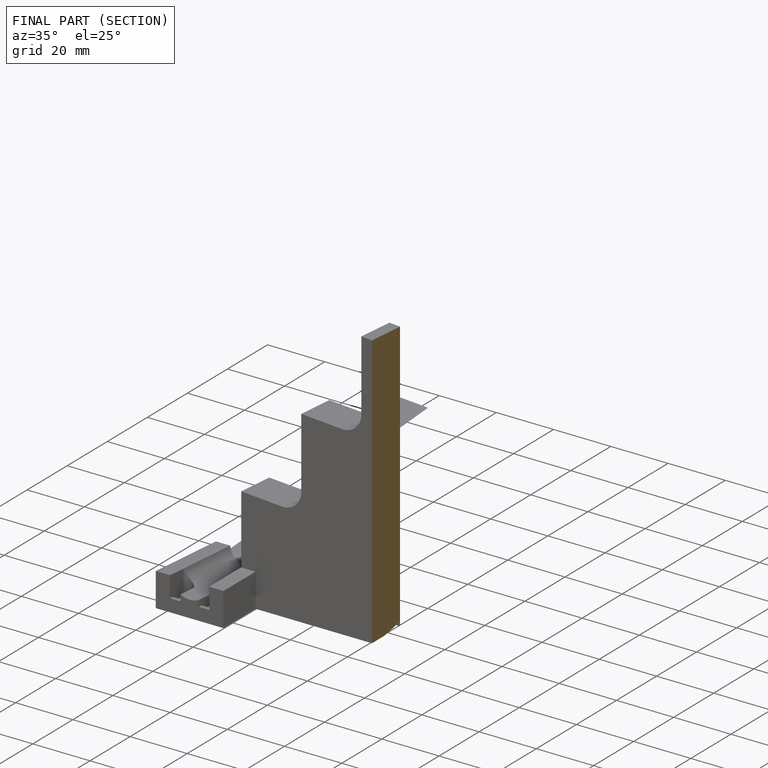
[diagram: finished part — half-section view (interior)]
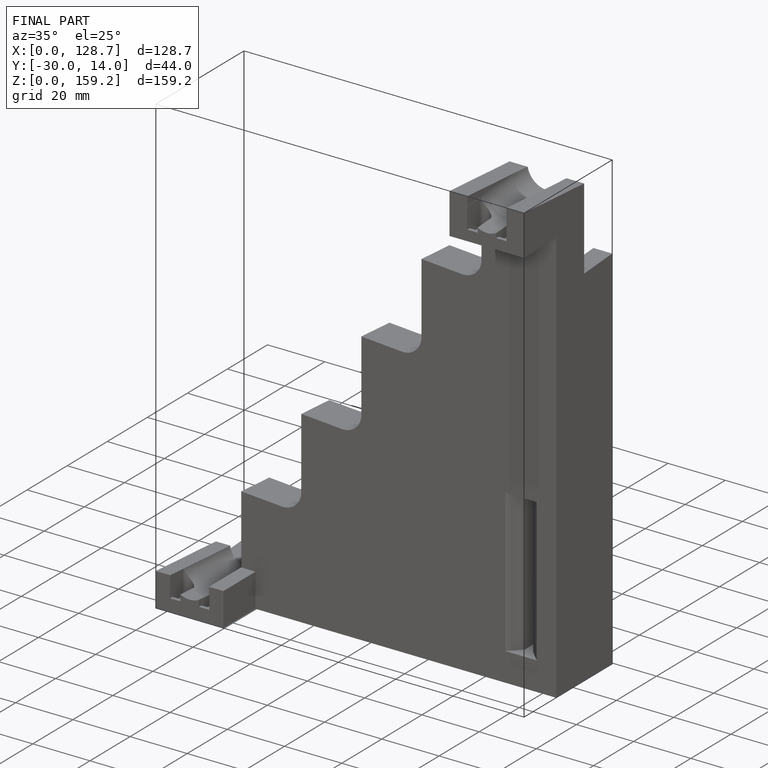
[diagram: finished part — iso view with bounding-box wireframe]
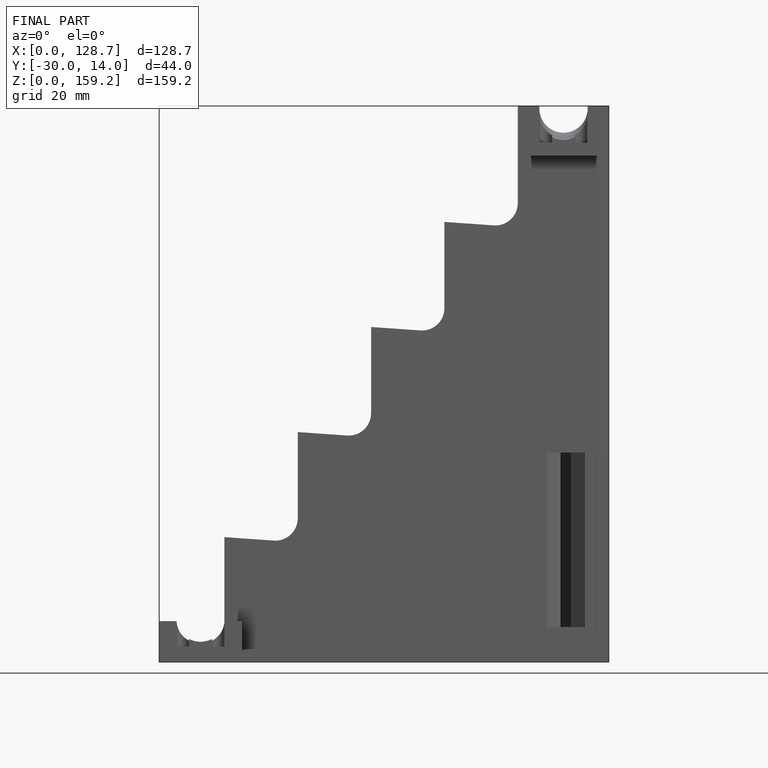
[diagram: finished part — front view with bounding-box wireframe]
